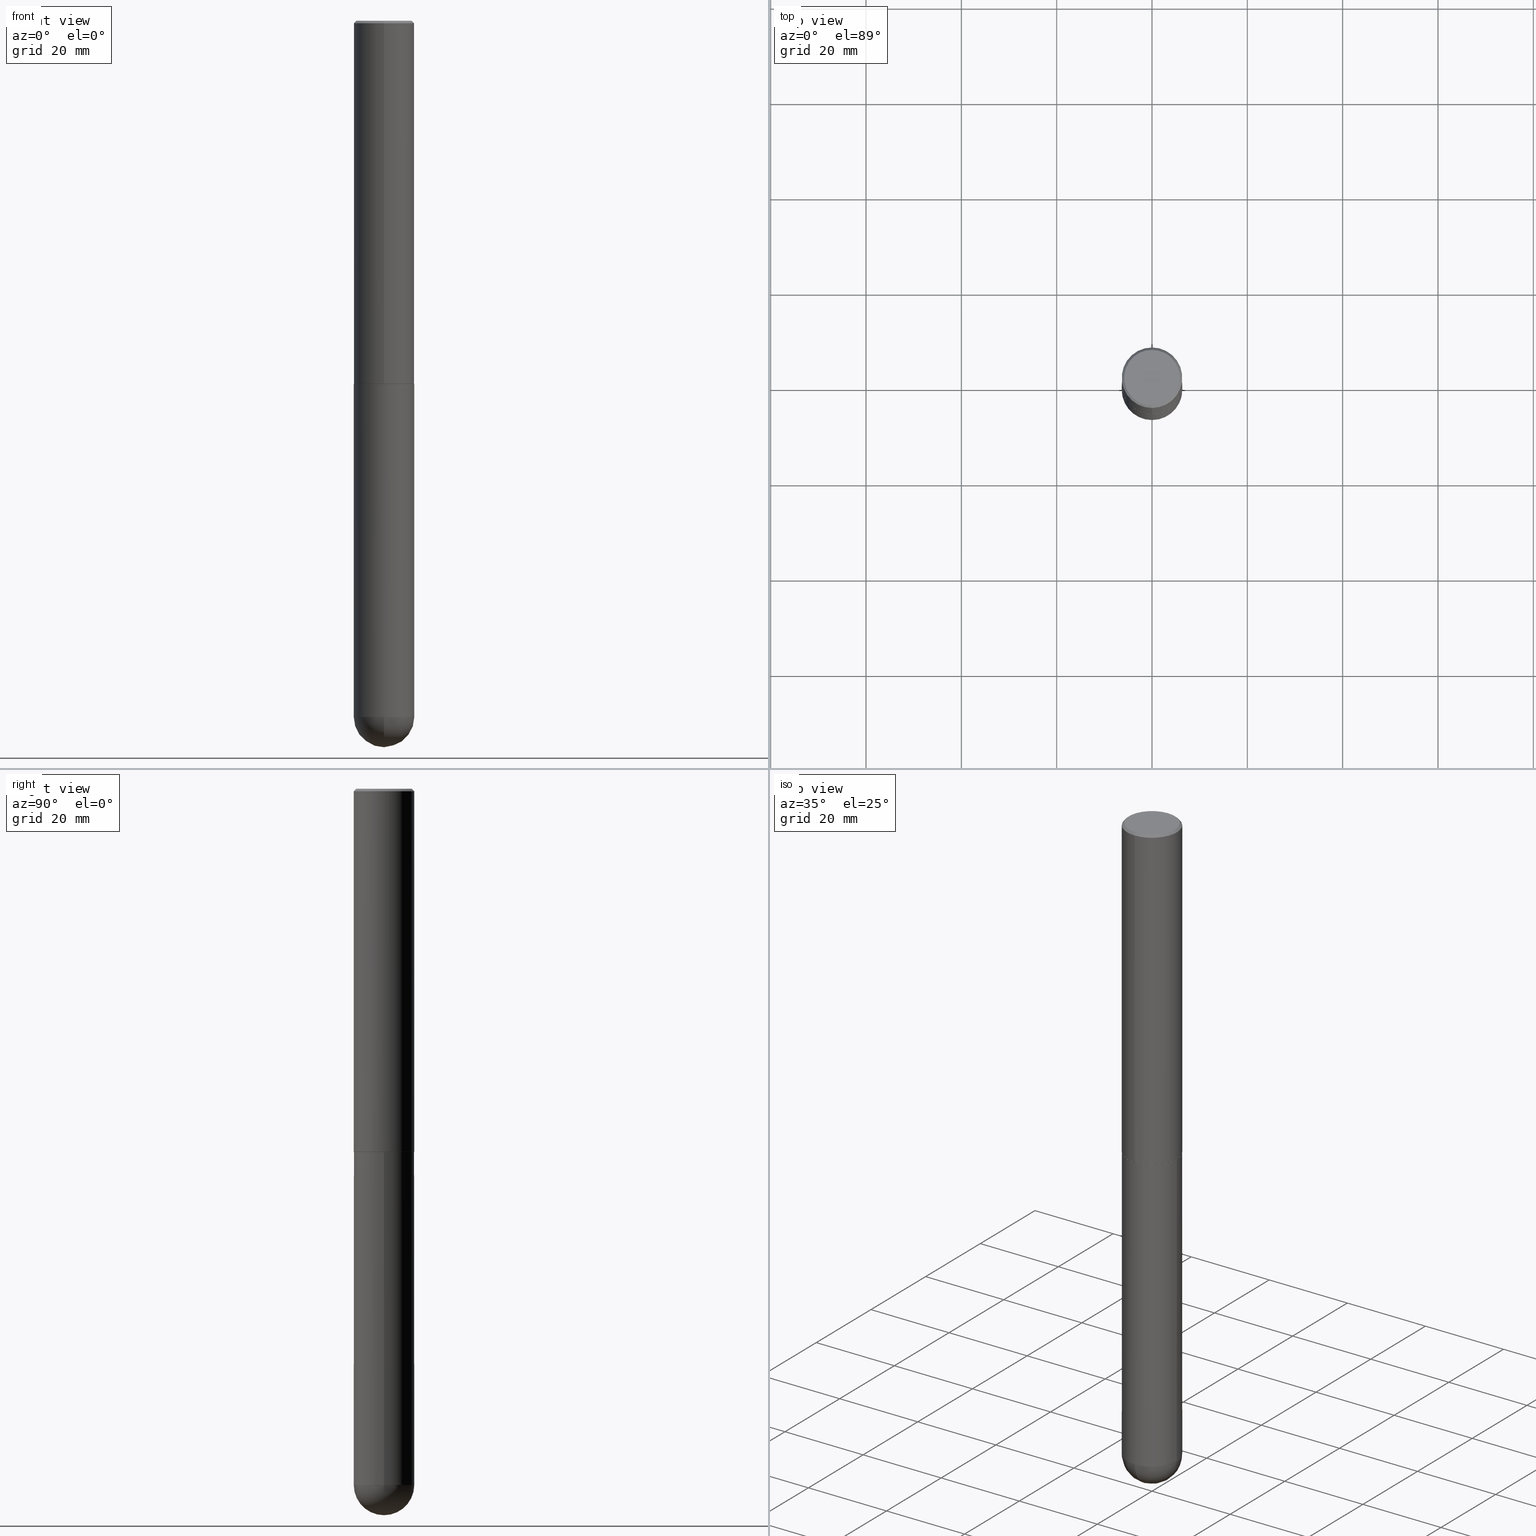
[diagram: canonical four-view strip — front | top / right | iso, engineering-drawing reading convention]
A machine part, canonical four-view strip (front | top / right | iso — engineering-drawing reading convention). The complete STEP part file that produces these views, byte-faithful:
ISO-10303-21;
HEADER;
FILE_DESCRIPTION (( 'STEP AP203' ),
    '1' );
FILE_NAME ('31934.STEP',
    '2024-02-21T17:19:04',
    ( '' ),
    ( '' ),
    'SwSTEP 2.0',
    'SolidWorks 2023',
    '' );
FILE_SCHEMA (( 'CONFIG_CONTROL_DESIGN' ));
ENDSEC;

DATA;
#1 = CLOSED_SHELL ( 'NONE', ( #183, #246, #33, #357, #375, #290, #94, #98 ) ) ;
#2 = CARTESIAN_POINT ( 'NONE',  ( 0.2500000000000000000, -1.702097152686033033E-14, -5.750000000000000888 ) ) ;
#3 = APPLICATION_CONTEXT ( 'configuration controlled 3d designs of mechanical parts and assemblies' ) ;
#4 = ORIENTED_EDGE ( 'NONE', *, *, #144, .T. ) ;
#5 = SPHERICAL_SURFACE ( 'NONE', #215, 0.2500000000000006661 ) ;
#6 = EDGE_CURVE ( 'NONE', #170, #88, #410, .T. ) ;
#7 = VERTEX_POINT ( 'NONE', #409 ) ;
#8 = DIRECTION ( 'NONE',  ( -2.445468806185136597E-29, 3.491481338843145583E-15, 1.000000000000000000 ) ) ;
#9 = ORIENTED_EDGE ( 'NONE', *, *, #214, .T. ) ;
#10 = CIRCLE ( 'NONE', #117, 0.2500000000000006661 ) ;
#11 = AXIS2_PLACEMENT_3D ( 'NONE', #280, #152, #256 ) ;
#12 = ORIENTED_EDGE ( 'NONE', *, *, #332, .T. ) ;
#13 = CARTESIAN_POINT ( 'NONE',  ( 0.000000000000000000, 0.000000000000000000, 0.000000000000000000 ) ) ;
#14 = AXIS2_PLACEMENT_3D ( 'NONE', #208, #181, #77 ) ;
#15 = EDGE_CURVE ( 'NONE', #324, #7, #59, .T. ) ;
#16 = CC_DESIGN_APPROVAL ( #122, ( #231 ) ) ;
#17 = CARTESIAN_POINT ( 'NONE',  ( 0.2500000000000000000, -1.222018468595100303E-14, -3.000000000000000444 ) ) ;
#18 = ORIENTED_EDGE ( 'NONE', *, *, #119, .F. ) ;
#19 = EDGE_CURVE ( 'NONE', #96, #324, #92, .T. ) ;
#20 = CARTESIAN_POINT ( 'NONE',  ( -0.2500000000000000000, -1.349887401803851318E-14, -3.000000000000000444 ) ) ;
#21 = CC_DESIGN_PERSON_AND_ORGANIZATION_ASSIGNMENT ( #155, #411, ( #151 ) ) ;
#22 = PERSON_AND_ORGANIZATION ( #229, #245 ) ;
#23 = CIRCLE ( 'NONE', #319, 0.2300000000000007871 ) ;
#24 = DIRECTION ( 'NONE',  ( -2.445357092195460350E-29, 3.491641319634726865E-15, 1.000000000000000000 ) ) ;
#25 = MECHANICAL_CONTEXT ( 'NONE', #3, 'mechanical' ) ;
#26 = FACE_OUTER_BOUND ( 'NONE', #29, .T. ) ;
#27 = CC_DESIGN_PERSON_AND_ORGANIZATION_ASSIGNMENT ( #34, #132, ( #304 ) ) ;
#28 = EDGE_LOOP ( 'NONE', ( #274, #136, #381, #233 ) ) ;
#29 = EDGE_LOOP ( 'NONE', ( #203, #60 ) ) ;
#30 = DIRECTION ( 'NONE',  ( 2.445357092195460350E-29, -3.491641319634726865E-15, -1.000000000000000000 ) ) ;
#31 = AXIS2_PLACEMENT_3D ( 'NONE', #302, #143, #271 ) ;
#32 = CALENDAR_DATE ( 2024, 21, 2 ) ;
#33 = ADVANCED_FACE ( 'NONE', ( #248 ), #367, .T. ) ;
#34 = PERSON_AND_ORGANIZATION ( #229, #245 ) ;
#35 = DIRECTION ( 'NONE',  ( -2.445357092195460631E-29, 3.491641319634726865E-15, 1.000000000000000000 ) ) ;
#36 = CIRCLE ( 'NONE', #272, 0.2500000000000006661 ) ;
#37 = DIRECTION ( 'NONE',  ( 4.937700262164540154E-15, 0.7071067811865440200, -0.7071067811865511255 ) ) ;
#38 = EDGE_CURVE ( 'NONE', #88, #170, #23, .T. ) ;
#39 = CARTESIAN_POINT ( 'NONE',  ( -0.2500000000000000000, -1.349887401803851318E-14, -5.750000000000000888 ) ) ;
#40 = APPROVAL ( #93, 'UNSPECIFIED' ) ;
#41 = PERSON_AND_ORGANIZATION ( #229, #245 ) ;
#42 = VERTEX_POINT ( 'NONE', #84 ) ;
#43 = CARTESIAN_POINT ( 'NONE',  ( 1.745740669421639647E-15, 0.2499999999999895084, -3.000000000000000888 ) ) ;
#44 = DIRECTION ( 'NONE',  ( -2.445357092195460350E-29, 3.491641319634726865E-15, 1.000000000000000000 ) ) ;
#45 = VERTEX_POINT ( 'NONE', #20 ) ;
#46 = CLOSED_SHELL ( 'NONE', ( #195, #285, #177, #299, #269 ) ) ;
#47 =( LENGTH_UNIT ( ) NAMED_UNIT ( * ) SI_UNIT ( $, .METRE. ) );
#48 = DIRECTION ( 'NONE',  ( -2.445357092195460631E-29, 3.491641319634726865E-15, 1.000000000000000000 ) ) ;
#49 = EDGE_LOOP ( 'NONE', ( #112, #265, #360, #350 ) ) ;
#50 = CARTESIAN_POINT ( 'NONE',  ( 1.373032585765065255E-28, -2.055020006648814124E-14, -5.750000000000000888 ) ) ;
#51 = CC_DESIGN_APPROVAL ( #156, ( #217 ) ) ;
#52 = VECTOR ( 'NONE', #342, 39.37007874015748143 ) ;
#53 = MANIFOLD_SOLID_BREP ( 'Body-Move/Copy2[1]', #46 ) ;
#54 = ORIENTED_EDGE ( 'NONE', *, *, #368, .F. ) ;
#55 =( NAMED_UNIT ( * ) PLANE_ANGLE_UNIT ( ) SI_UNIT ( $, .RADIAN. ) );
#56 = LINE ( 'NONE', #307, #239 ) ;
#57 = CALENDAR_DATE ( 2024, 21, 2 ) ;
#58 = DIRECTION ( 'NONE',  ( 1.000000000000000000, -6.982962677686262766E-15, 0.000000000000000000 ) ) ;
#59 = CIRCLE ( 'NONE', #340, 0.2500000000000003331 ) ;
#60 = ORIENTED_EDGE ( 'NONE', *, *, #140, .F. ) ;
#61 = DIRECTION ( 'NONE',  ( -6.982962677686265922E-15, -1.000000000000000000, 3.491641319634726865E-15 ) ) ;
#62 = MANIFOLD_SOLID_BREP ( 'Body-Move/Copy2[2]', #1 ) ;
#63 = ORIENTED_EDGE ( 'NONE', *, *, #6, .F. ) ;
#64 = APPLICATION_CONTEXT ( 'configuration controlled 3d designs of mechanical parts and assemblies' ) ;
#65 = CALENDAR_DATE ( 2024, 21, 2 ) ;
#66 = AXIS2_PLACEMENT_3D ( 'NONE', #347, #253, #372 ) ;
#67 = DIRECTION ( 'NONE',  ( 6.982962677686265922E-15, 1.000000000000000000, -4.370956789862809317E-15 ) ) ;
#68 = CIRCLE ( 'NONE', #74, 0.2489999999999999991 ) ;
#69 = CC_DESIGN_SECURITY_CLASSIFICATION ( #231, ( #304 ) ) ;
#70 = DIRECTION ( 'NONE',  ( 1.000000000000000000, -6.982962677686262766E-15, 0.000000000000000000 ) ) ;
#71 = LINE ( 'NONE', #223, #159 ) ;
#72 = EDGE_LOOP ( 'NONE', ( #369, #389 ) ) ;
#73 = DIRECTION ( 'NONE',  ( 2.445357092195460631E-29, -3.491641319634726865E-15, -1.000000000000000000 ) ) ;
#74 = AXIS2_PLACEMENT_3D ( 'NONE', #394, #142, #111 ) ;
#75 = FACE_OUTER_BOUND ( 'NONE', #79, .T. ) ;
#76 = CARTESIAN_POINT ( 'NONE',  ( 1.776356839400251254E-15, 0.2500000000000001665, -8.729103299086822093E-16 ) ) ;
#77 = DIRECTION ( 'NONE',  ( -6.982962677686265922E-15, -1.000000000000000000, 3.483106191921935554E-15 ) ) ;
#78 = CIRCLE ( 'NONE', #364, 0.2500000000000000000 ) ;
#79 = EDGE_LOOP ( 'NONE', ( #279, #386, #118, #296, #4 ) ) ;
#80 = CARTESIAN_POINT ( 'NONE',  ( 1.373032585765065255E-28, -2.055020006648814124E-14, -5.750000000000000888 ) ) ;
#81 = PRODUCT_DEFINITION_SHAPE ( 'NONE', 'NONE',  #217 ) ;
#82 = CARTESIAN_POINT ( 'NONE',  ( -0.2500000000000000000, 1.776356839400250465E-15, -1.229733772563726445E-29 ) ) ;
#83 = APPROVAL_ROLE ( '' ) ;
#84 = CARTESIAN_POINT ( 'NONE',  ( 1.435238263781167989E-28, -2.140776231620958900E-14, -6.000000000000001776 ) ) ;
#85 = AXIS2_PLACEMENT_3D ( 'NONE', #130, #188, #278 ) ;
#86 = LINE ( 'NONE', #82, #52 ) ;
#87 = APPLICATION_PROTOCOL_DEFINITION ( 'international standard', 'config_control_design', 1994, #64 ) ;
#88 = VERTEX_POINT ( 'NONE', #89 ) ;
#89 = CARTESIAN_POINT ( 'NONE',  ( -1.646519519465169926E-15, -0.2300000000000007871, 1.770800091957787978E-17 ) ) ;
#90 = ORIENTED_EDGE ( 'NONE', *, *, #308, .F. ) ;
#91 = EDGE_CURVE ( 'NONE', #268, #306, #258, .T. ) ;
#92 = LINE ( 'NONE', #373, #186 ) ;
#93 = APPROVAL_STATUS ( 'not_yet_approved' ) ;
#94 = ADVANCED_FACE ( 'NONE', ( #26 ), #157, .F. ) ;
#95 = CIRCLE ( 'NONE', #251, 0.2500000000000000000 ) ;
#96 = VERTEX_POINT ( 'NONE', #150 ) ;
#97 = CARTESIAN_POINT ( 'NONE',  ( 0.000000000000000000, 0.000000000000000000, 0.000000000000000000 ) ) ;
#98 = ADVANCED_FACE ( 'NONE', ( #407 ), #123, .F. ) ;
#99 = DATE_AND_TIME ( #57, #198 ) ;
#100 = CARTESIAN_POINT ( 'NONE',  ( -1.715124499442882299E-15, -0.2500000000000000555, -0.01999999999999918510 ) ) ;
#101 = ORIENTED_EDGE ( 'NONE', *, *, #19, .T. ) ;
#102 = DIRECTION ( 'NONE',  ( 6.982962677686266711E-15, 1.000000000000000000, 0.000000000000000000 ) ) ;
#103 = CIRCLE ( 'NONE', #165, 0.2489999999999999991 ) ;
#104 = APPROVAL_DATE_TIME ( #99, #40 ) ;
#105 = ORIENTED_EDGE ( 'NONE', *, *, #303, .T. ) ;
#106 = DIRECTION ( 'NONE',  ( -2.445357092195460631E-29, 3.491641319634726865E-15, 1.000000000000000000 ) ) ;
#107 = DESIGN_CONTEXT ( 'detailed design', #64, 'design' ) ;
#108 = EDGE_LOOP ( 'NONE', ( #18, #63, #105, #9 ) ) ;
#109 = DIRECTION ( 'NONE',  ( -6.982962677686265922E-15, -1.000000000000000000, 3.491641319634726471E-15 ) ) ;
#110 = EDGE_CURVE ( 'NONE', #306, #207, #249, .T. ) ;
#111 = DIRECTION ( 'NONE',  ( -6.982962677686265133E-15, -1.000000000000000000, 4.388510833195603583E-15 ) ) ;
#112 = ORIENTED_EDGE ( 'NONE', *, *, #38, .F. ) ;
#113 = DIRECTION ( 'NONE',  ( -1.000000000000000000, 6.982962677686265922E-15, -4.883557194083112340E-29 ) ) ;
#114 = DIRECTION ( 'NONE',  ( -2.445468806185136597E-29, 3.491481338843145583E-15, 1.000000000000000000 ) ) ;
#115 = EDGE_CURVE ( 'NONE', #351, #45, #86, .T. ) ;
#116 = CARTESIAN_POINT ( 'NONE',  ( 1.406144563556453767E-28, -2.007601769834809252E-14, -5.750000000000000888 ) ) ;
#117 = AXIS2_PLACEMENT_3D ( 'NONE', #80, #210, #187 ) ;
#118 = ORIENTED_EDGE ( 'NONE', *, *, #344, .F. ) ;
#119 = EDGE_CURVE ( 'NONE', #88, #312, #378, .T. ) ;
#120 = DIRECTION ( 'NONE',  ( -6.982962677686265922E-15, -1.000000000000000000, 4.370956789862815627E-15 ) ) ;
#121 = PERSON_AND_ORGANIZATION_ROLE ( 'creator' ) ;
#122 = APPROVAL ( #291, 'UNSPECIFIED' ) ;
#123 = PLANE ( 'NONE',  #145 ) ;
#124 = ORIENTED_EDGE ( 'NONE', *, *, #308, .T. ) ;
#125 = LOCAL_TIME ( 12, 19, 4.000000000000000000, #286 ) ;
#126 = CIRCLE ( 'NONE', #380, 0.2500000000000000000 ) ;
#127 = APPROVAL_PERSON_ORGANIZATION ( #379, #40, #212 ) ;
#128 = DIRECTION ( 'NONE',  ( 5.024295867789434219E-15, 0.7071067811867430830, 0.7071067811863519514 ) ) ;
#129 = APPROVAL_STATUS ( 'not_yet_approved' ) ;
#130 = CARTESIAN_POINT ( 'NONE',  ( 1.920508883168157338E-44, -2.742228606446605218E-30, -7.853695025964119872E-16 ) ) ;
#131 = AXIS2_PLACEMENT_3D ( 'NONE', #300, #35, #393 ) ;
#132 = PERSON_AND_ORGANIZATION_ROLE ( 'design_supplier' ) ;
#133 = DIRECTION ( 'NONE',  ( -1.000000000000000000, 6.982962677686265922E-15, -4.883557194083112340E-29 ) ) ;
#134 = EDGE_CURVE ( 'NONE', #7, #312, #56, .T. ) ;
#135 = ORIENTED_EDGE ( 'NONE', *, *, #144, .F. ) ;
#136 = ORIENTED_EDGE ( 'NONE', *, *, #140, .T. ) ;
#137 = DIRECTION ( 'NONE',  ( -6.982962677686265922E-15, -1.000000000000000000, 3.483106191921935554E-15 ) ) ;
#138 = AXIS2_PLACEMENT_3D ( 'NONE', #97, #106, #109 ) ;
#139 = AXIS2_PLACEMENT_3D ( 'NONE', #365, #175, #362 ) ;
#140 = EDGE_CURVE ( 'NONE', #96, #219, #103, .T. ) ;
#141 = CARTESIAN_POINT ( 'NONE',  ( 7.336406418555409790E-29, -1.047444401652943635E-14, -3.000000000000000444 ) ) ;
#142 = DIRECTION ( 'NONE',  ( -2.445357092195460631E-29, 3.491641319634726865E-15, 1.000000000000000000 ) ) ;
#143 = DIRECTION ( 'NONE',  ( -2.445357092195460631E-29, 3.491641319634726865E-15, 1.000000000000000000 ) ) ;
#144 = EDGE_CURVE ( 'NONE', #306, #173, #348, .T. ) ;
#145 = AXIS2_PLACEMENT_3D ( 'NONE', #191, #30, #275 ) ;
#146 = CIRCLE ( 'NONE', #228, 0.2500000000000000000 ) ;
#147 = CARTESIAN_POINT ( 'NONE',  ( 0.000000000000000000, 0.000000000000000000, 0.000000000000000000 ) ) ;
#148 = EDGE_LOOP ( 'NONE', ( #355, #343 ) ) ;
#149 = DIMENSIONAL_EXPONENTS ( 1.000000000000000000, 0.000000000000000000, 0.000000000000000000, 0.000000000000000000, 0.000000000000000000, 0.000000000000000000, 0.000000000000000000 ) ;
#150 = CARTESIAN_POINT ( 'NONE',  ( 1.772804125721524114E-15, 0.2489999999999895075, -3.000000000000001332 ) ) ;
#151 = PRODUCT ( '31934', '31934', '', ( #25 ) ) ;
#152 = DIRECTION ( 'NONE',  ( 0.000000000000000000, 0.000000000000000000, 1.000000000000000000 ) ) ;
#153 = CIRCLE ( 'NONE', #180, 0.2500000000000000000 ) ;
#154 = CARTESIAN_POINT ( 'NONE',  ( 7.336071276586383013E-29, -1.047492395890418099E-14, -3.000000000000000444 ) ) ;
#155 = PERSON_AND_ORGANIZATION ( #229, #245 ) ;
#156 = APPROVAL ( #129, 'UNSPECIFIED' ) ;
#157 = PLANE ( 'NONE',  #230 ) ;
#158 = ORIENTED_EDGE ( 'NONE', *, *, #221, .T. ) ;
#159 = VECTOR ( 'NONE', #297, 39.37007874015748143 ) ;
#160 = VECTOR ( 'NONE', #211, 39.37007874015748854 ) ;
#161 = APPROVAL_PERSON_ORGANIZATION ( #41, #122, #316 ) ;
#162 = DATE_AND_TIME ( #32, #125 ) ;
#163 = FACE_OUTER_BOUND ( 'NONE', #72, .T. ) ;
#164 = CONICAL_SURFACE ( 'NONE', #139, 0.2489999999999999991, 0.7853981633977213939 ) ;
#165 = AXIS2_PLACEMENT_3D ( 'NONE', #154, #48, #267 ) ;
#166 = APPROVAL_DATE_TIME ( #232, #122 ) ;
#167 = CARTESIAN_POINT ( 'NONE',  ( 1.373032585765065255E-28, -2.055020006648814124E-14, -5.750000000000000888 ) ) ;
#168 = COORDINATED_UNIVERSAL_TIME_OFFSET ( 5, 0, .BEHIND. ) ;
#169 = DIRECTION ( 'NONE',  ( 6.982962677686265922E-15, 1.000000000000000000, -3.483106191921935554E-15 ) ) ;
#170 = VERTEX_POINT ( 'NONE', #333 ) ;
#171 = FACE_OUTER_BOUND ( 'NONE', #193, .T. ) ;
#172 = EDGE_CURVE ( 'NONE', #219, #96, #68, .T. ) ;
#173 = VERTEX_POINT ( 'NONE', #358 ) ;
#174 = CARTESIAN_POINT ( 'NONE',  ( 1.406144563556453767E-28, -2.007601769834809252E-14, -5.750000000000000888 ) ) ;
#175 = DIRECTION ( 'NONE',  ( -2.445357092195460631E-29, 3.491641319634726865E-15, 1.000000000000000000 ) ) ;
#176 = ORIENTED_EDGE ( 'NONE', *, *, #110, .T. ) ;
#177 = ADVANCED_FACE ( 'NONE', ( #237 ), #270, .T. ) ;
#178 = CYLINDRICAL_SURFACE ( 'NONE', #31, 0.2500000000000001665 ) ;
#179 = DIRECTION ( 'NONE',  ( 1.000000000000000000, -6.982962677686266711E-15, 4.876176775795935793E-29 ) ) ;
#180 = AXIS2_PLACEMENT_3D ( 'NONE', #141, #8, #317 ) ;
#181 = DIRECTION ( 'NONE',  ( -2.445357092195460631E-29, 3.491641319634726865E-15, 1.000000000000000000 ) ) ;
#182 = DIRECTION ( 'NONE',  ( -2.445357092195460350E-29, 3.491641319634726865E-15, 1.000000000000000000 ) ) ;
#183 = ADVANCED_FACE ( 'NONE', ( #273 ), #164, .T. ) ;
#184 = FACE_OUTER_BOUND ( 'NONE', #301, .T. ) ;
#185 = CARTESIAN_POINT ( 'NONE',  ( -1.715124499442882299E-15, -0.2500000000000000555, -0.01999999999999918510 ) ) ;
#186 = VECTOR ( 'NONE', #128, 39.37007874015748143 ) ;
#187 = DIRECTION ( 'NONE',  ( -7.105427357601001859E-15, -1.000000000000000000, 0.000000000000000000 ) ) ;
#188 = DIRECTION ( 'NONE',  ( -2.445357092195460631E-29, 3.491641319634726865E-15, 1.000000000000000000 ) ) ;
#189 = EDGE_CURVE ( 'NONE', #7, #324, #194, .T. ) ;
#190 = DIRECTION ( 'NONE',  ( -2.445468806185136597E-29, 3.491481338843145583E-15, 1.000000000000000000 ) ) ;
#191 = CARTESIAN_POINT ( 'NONE',  ( 1.606081415867846589E-15, 0.2300000000000007871, -1.195762254814195959E-15 ) ) ;
#192 = APPROVAL_DATE_TIME ( #406, #156 ) ;
#193 = EDGE_LOOP ( 'NONE', ( #243, #158, #292, #226 ) ) ;
#194 = CIRCLE ( 'NONE', #197, 0.2500000000000003331 ) ;
#195 = ADVANCED_FACE ( 'NONE', ( #75 ), #326, .T. ) ;
#196 = DIRECTION ( 'NONE',  ( 2.438088387897960049E-29, -3.491481338843145188E-15, -1.000000000000000000 ) ) ;
#197 = AXIS2_PLACEMENT_3D ( 'NONE', #202, #366, #205 ) ;
#198 = LOCAL_TIME ( 12, 19, 4.000000000000000000, #338 ) ;
#199 = ORIENTED_EDGE ( 'NONE', *, *, #91, .F. ) ;
#200 = FACE_OUTER_BOUND ( 'NONE', #28, .T. ) ;
#201 = ORIENTED_EDGE ( 'NONE', *, *, #15, .T. ) ;
#202 = CARTESIAN_POINT ( 'NONE',  ( 7.333625919494187361E-29, -1.047143231758454677E-14, -2.999000000000000554 ) ) ;
#203 = ORIENTED_EDGE ( 'NONE', *, *, #172, .F. ) ;
#204 = CARTESIAN_POINT ( 'NONE',  ( 4.890714184390934188E-31, -6.983282639269473353E-17, -0.02000000000000005593 ) ) ;
#205 = DIRECTION ( 'NONE',  ( -6.982962677686265922E-15, -1.000000000000000000, 4.370956789862815627E-15 ) ) ;
#206 = CONICAL_SURFACE ( 'NONE', #354, 0.2500000000000000000, 0.7853981633974467247 ) ;
#207 = VERTEX_POINT ( 'NONE', #17 ) ;
#208 = CARTESIAN_POINT ( 'NONE',  ( 4.890714184390934188E-31, -6.983282639269473353E-17, -0.02000000000000005593 ) ) ;
#209 = AXIS2_PLACEMENT_3D ( 'NONE', #147, #329, #179 ) ;
#210 = DIRECTION ( 'NONE',  ( -1.000000000000000000, 7.105427357601001070E-15, -4.926315508542082329E-29 ) ) ;
#211 = DIRECTION ( 'NONE',  ( -4.851104656540955597E-15, -0.7071067811865487940, -0.7071067811865461294 ) ) ;
#212 = APPROVAL_ROLE ( '' ) ;
#213 = ORIENTED_EDGE ( 'NONE', *, *, #264, .F. ) ;
#214 = EDGE_CURVE ( 'NONE', #216, #312, #276, .T. ) ;
#215 = AXIS2_PLACEMENT_3D ( 'NONE', #322, #133, #67 ) ;
#216 = VERTEX_POINT ( 'NONE', #305 ) ;
#217 = PRODUCT_DEFINITION ( 'UNKNOWN', '', #304, #107 ) ;
#218 = CARTESIAN_POINT ( 'NONE',  ( 1.406144563556453767E-28, -2.007601769834809252E-14, -5.750000000000000888 ) ) ;
#219 = VERTEX_POINT ( 'NONE', #401 ) ;
#220 = VECTOR ( 'NONE', #37, 39.37007874015748143 ) ;
#221 = EDGE_CURVE ( 'NONE', #324, #216, #331, .T. ) ;
#222 = PERSON_AND_ORGANIZATION_ROLE ( 'classification_officer' ) ;
#223 = CARTESIAN_POINT ( 'NONE',  ( -1.738757706743806905E-15, -0.2490000000000104907, -2.999999999999999112 ) ) ;
#224 = CALENDAR_DATE ( 2024, 21, 2 ) ;
#225 = CARTESIAN_POINT ( 'NONE',  ( 1.776356839400289119E-15, 0.2499999999999898415, -2.999000000000001442 ) ) ;
#226 = ORIENTED_EDGE ( 'NONE', *, *, #134, .F. ) ;
#227 = DIRECTION ( 'NONE',  ( -2.445468806185136597E-29, 3.491481338843145583E-15, 1.000000000000000000 ) ) ;
#228 = AXIS2_PLACEMENT_3D ( 'NONE', #204, #328, #137 ) ;
#229 = PERSON ( 'UNSPECIFIED', 'UNSPECIFIED', 'UNSPECIFIED', ('UNSPECIFIED'), ('UNSPECIFIED'), ('UNSPECIFIED') ) ;
#230 = AXIS2_PLACEMENT_3D ( 'NONE', #313, #182, #309 ) ;
#231 = SECURITY_CLASSIFICATION ( '', '', #287 ) ;
#232 = DATE_AND_TIME ( #259, #398 ) ;
#233 = ORIENTED_EDGE ( 'NONE', *, *, #15, .F. ) ;
#234 = COORDINATED_UNIVERSAL_TIME_OFFSET ( 5, 0, .BEHIND. ) ;
#235 = ORIENTED_EDGE ( 'NONE', *, *, #115, .F. ) ;
#236 = LENGTH_MEASURE_WITH_UNIT ( LENGTH_MEASURE( 0.02539999999999999897 ), #47 );
#237 = FACE_OUTER_BOUND ( 'NONE', #392, .T. ) ;
#238 = EDGE_LOOP ( 'NONE', ( #262, #201, #337, #254 ) ) ;
#239 = VECTOR ( 'NONE', #24, 39.37007874015748143 ) ;
#240 = DIRECTION ( 'NONE',  ( 1.000000000000000000, -6.982962677686262766E-15, 0.000000000000000000 ) ) ;
#241 = DIRECTION ( 'NONE',  ( -2.445468806185136597E-29, 3.491481338843145583E-15, 1.000000000000000000 ) ) ;
#242 = CARTESIAN_POINT ( 'NONE',  ( -1.776356839400113597E-15, -0.2500000000000206501, -5.750000000000000000 ) ) ;
#243 = ORIENTED_EDGE ( 'NONE', *, *, #189, .T. ) ;
#244 = AXIS2_PLACEMENT_3D ( 'NONE', #43, #196, #288 ) ;
#245 = ORGANIZATION ( 'UNSPECIFIED', 'UNSPECIFIED', '' ) ;
#246 = ADVANCED_FACE ( 'NONE', ( #171 ), #178, .T. ) ;
#247 = EDGE_LOOP ( 'NONE', ( #90, #412, #363, #281 ) ) ;
#248 = FACE_OUTER_BOUND ( 'NONE', #49, .T. ) ;
#249 = LINE ( 'NONE', #255, #374 ) ;
#250 = PRODUCT_RELATED_PRODUCT_CATEGORY ( 'detail', '', ( #151 ) ) ;
#251 = AXIS2_PLACEMENT_3D ( 'NONE', #174, #227, #356 ) ;
#252 = CC_DESIGN_APPROVAL ( #40, ( #304 ) ) ;
#253 = DIRECTION ( 'NONE',  ( 2.445357092195460631E-29, -3.491641319634726865E-15, -1.000000000000000000 ) ) ;
#254 = ORIENTED_EDGE ( 'NONE', *, *, #214, .F. ) ;
#255 = CARTESIAN_POINT ( 'NONE',  ( 0.2500000000000000000, -1.745740669421566678E-15, 1.219044193948983948E-29 ) ) ;
#256 = DIRECTION ( 'NONE',  ( 1.000000000000000000, 0.000000000000000000, 0.000000000000000000 ) ) ;
#257 = CARTESIAN_POINT ( 'NONE',  ( 7.336406418555409790E-29, -1.047444401652943635E-14, -3.000000000000000444 ) ) ;
#258 = CIRCLE ( 'NONE', #283, 0.2500000000000000000 ) ;
#259 = CALENDAR_DATE ( 2024, 21, 2 ) ;
#260 = DIRECTION ( 'NONE',  ( 1.000000000000000000, -6.982962677686266711E-15, 4.876176775795935793E-29 ) ) ;
#261 = EDGE_CURVE ( 'NONE', #173, #351, #78, .T. ) ;
#262 = ORIENTED_EDGE ( 'NONE', *, *, #221, .F. ) ;
#263 = LINE ( 'NONE', #293, #220 ) ;
#264 = EDGE_CURVE ( 'NONE', #42, #268, #10, .T. ) ;
#265 = ORIENTED_EDGE ( 'NONE', *, *, #119, .T. ) ;
#266 = FACE_OUTER_BOUND ( 'NONE', #238, .T. ) ;
#267 = DIRECTION ( 'NONE',  ( -6.982962677686265133E-15, -1.000000000000000000, 4.388510833195603583E-15 ) ) ;
#268 = VERTEX_POINT ( 'NONE', #242 ) ;
#269 = ADVANCED_FACE ( 'NONE', ( #184 ), #277, .T. ) ;
#270 = SPHERICAL_SURFACE ( 'NONE', #390, 0.2500000000000006661 ) ;
#271 = DIRECTION ( 'NONE',  ( -6.982962677686265922E-15, -1.000000000000000000, 3.491641319634726471E-15 ) ) ;
#272 = AXIS2_PLACEMENT_3D ( 'NONE', #167, #384, #102 ) ;
#273 = FACE_OUTER_BOUND ( 'NONE', #395, .T. ) ;
#274 = ORIENTED_EDGE ( 'NONE', *, *, #19, .F. ) ;
#275 = DIRECTION ( 'NONE',  ( 6.982962677686265922E-15, 1.000000000000000000, -3.491641319634726865E-15 ) ) ;
#276 = CIRCLE ( 'NONE', #14, 0.2500000000000000000 ) ;
#277 = CYLINDRICAL_SURFACE ( 'NONE', #298, 0.2500000000000000000 ) ;
#278 = DIRECTION ( 'NONE',  ( -6.982962677686265922E-15, -1.000000000000000000, 3.491641319634726865E-15 ) ) ;
#279 = ORIENTED_EDGE ( 'NONE', *, *, #261, .T. ) ;
#280 = CARTESIAN_POINT ( 'NONE',  ( 0.000000000000000000, 0.000000000000000000, 0.000000000000000000 ) ) ;
#281 = ORIENTED_EDGE ( 'NONE', *, *, #261, .F. ) ;
#282 = APPROVAL_PERSON_ORGANIZATION ( #22, #156, #83 ) ;
#283 = AXIS2_PLACEMENT_3D ( 'NONE', #218, #190, #311 ) ;
#284 = DIRECTION ( 'NONE',  ( -2.445357092195460631E-29, 3.491641319634726865E-15, 1.000000000000000000 ) ) ;
#285 = ADVANCED_FACE ( 'NONE', ( #387 ), #5, .T. ) ;
#286 = COORDINATED_UNIVERSAL_TIME_OFFSET ( 5, 0, .BEHIND. ) ;
#287 = SECURITY_CLASSIFICATION_LEVEL ( 'unclassified' ) ;
#288 = DIRECTION ( 'NONE',  ( -1.000000000000000000, 6.982962677686265922E-15, -4.876176775795935793E-29 ) ) ;
#289 = AXIS2_PLACEMENT_3D ( 'NONE', #116, #241, #240 ) ;
#290 = ADVANCED_FACE ( 'NONE', ( #200 ), #402, .T. ) ;
#291 = APPROVAL_STATUS ( 'not_yet_approved' ) ;
#292 = ORIENTED_EDGE ( 'NONE', *, *, #371, .F. ) ;
#293 = CARTESIAN_POINT ( 'NONE',  ( 1.745740669421566875E-15, 0.2499999999999999167, -0.02000000000000092676 ) ) ;
#294 = ORIENTED_EDGE ( 'NONE', *, *, #385, .F. ) ;
#295 = PLANE ( 'NONE',  #244 ) ;
#296 = ORIENTED_EDGE ( 'NONE', *, *, #110, .F. ) ;
#297 = DIRECTION ( 'NONE',  ( -4.937700262165896205E-15, -0.7071067811867381980, 0.7071067811863568364 ) ) ;
#298 = AXIS2_PLACEMENT_3D ( 'NONE', #13, #320, #260 ) ;
#299 = ADVANCED_FACE ( 'NONE', ( #163 ), #295, .F. ) ;
#300 = CARTESIAN_POINT ( 'NONE',  ( 7.336071276586383013E-29, -1.047492395890418099E-14, -3.000000000000000444 ) ) ;
#301 = EDGE_LOOP ( 'NONE', ( #235, #12, #336, #176, #54 ) ) ;
#302 = CARTESIAN_POINT ( 'NONE',  ( 0.000000000000000000, 0.000000000000000000, 0.000000000000000000 ) ) ;
#303 = EDGE_CURVE ( 'NONE', #170, #216, #263, .T. ) ;
#304 = PRODUCT_DEFINITION_FORMATION_WITH_SPECIFIED_SOURCE ( 'ANY', '', #151, .NOT_KNOWN. ) ;
#305 = CARTESIAN_POINT ( 'NONE',  ( 1.745740669421566875E-15, 0.2499999999999999167, -0.02000000000000092676 ) ) ;
#306 = VERTEX_POINT ( 'NONE', #2 ) ;
#307 = CARTESIAN_POINT ( 'NONE',  ( -1.745740669421567664E-15, -0.2500000000000001665, 8.729103299086822093E-16 ) ) ;
#308 = EDGE_CURVE ( 'NONE', #42, #173, #36, .T. ) ;
#309 = DIRECTION ( 'NONE',  ( -6.982962677686265922E-15, -1.000000000000000000, 3.491641319634726865E-15 ) ) ;
#310 =( NAMED_UNIT ( * ) SI_UNIT ( $, .STERADIAN. ) SOLID_ANGLE_UNIT ( ) );
#311 = DIRECTION ( 'NONE',  ( 1.000000000000000000, -6.982962677686262766E-15, 0.000000000000000000 ) ) ;
#312 = VERTEX_POINT ( 'NONE', #100 ) ;
#313 = CARTESIAN_POINT ( 'NONE',  ( 7.336071276586380771E-29, -1.047492395890417941E-14, -2.999999999999999556 ) ) ;
#314 = PERSON_AND_ORGANIZATION ( #229, #245 ) ;
#315 = LOCAL_TIME ( 12, 19, 4.000000000000000000, #168 ) ;
#316 = APPROVAL_ROLE ( '' ) ;
#317 = DIRECTION ( 'NONE',  ( 1.000000000000000000, -6.982962677686262766E-15, 0.000000000000000000 ) ) ;
#318 = DATE_AND_TIME ( #224, #315 ) ;
#319 = AXIS2_PLACEMENT_3D ( 'NONE', #345, #376, #61 ) ;
#320 = DIRECTION ( 'NONE',  ( -2.445468806185136597E-29, 3.491481338843145583E-15, 1.000000000000000000 ) ) ;
#321 = SHAPE_DEFINITION_REPRESENTATION ( #81, #400 ) ;
#322 = CARTESIAN_POINT ( 'NONE',  ( 1.373032585765065255E-28, -2.055020006648814124E-14, -5.750000000000000888 ) ) ;
#323 = PERSON_AND_ORGANIZATION ( #229, #245 ) ;
#324 = VERTEX_POINT ( 'NONE', #225 ) ;
#325 = DIRECTION ( 'NONE',  ( -2.445468806185136597E-29, 3.491481338843145583E-15, 1.000000000000000000 ) ) ;
#326 = CYLINDRICAL_SURFACE ( 'NONE', #209, 0.2500000000000000000 ) ;
#327 = ORIENTED_EDGE ( 'NONE', *, *, #189, .F. ) ;
#328 = DIRECTION ( 'NONE',  ( -2.445357092195460631E-29, 3.491641319634726865E-15, 1.000000000000000000 ) ) ;
#329 = DIRECTION ( 'NONE',  ( -2.445468806185136597E-29, 3.491481338843145583E-15, 1.000000000000000000 ) ) ;
#330 = UNCERTAINTY_MEASURE_WITH_UNIT (LENGTH_MEASURE( 1.000000000000000082E-05 ), #361, 'distance_accuracy_value', 'NONE');
#331 = LINE ( 'NONE', #76, #397 ) ;
#332 = EDGE_CURVE ( 'NONE', #351, #268, #95, .T. ) ;
#333 = CARTESIAN_POINT ( 'NONE',  ( 1.675911042644706732E-15, 0.2300000000000007871, -1.588447006112402101E-15 ) ) ;
#334 = CC_DESIGN_PERSON_AND_ORGANIZATION_ASSIGNMENT ( #314, #121, ( #217 ) ) ;
#335 = LOCAL_TIME ( 12, 19, 4.000000000000000000, #346 ) ;
#336 = ORIENTED_EDGE ( 'NONE', *, *, #91, .T. ) ;
#337 = ORIENTED_EDGE ( 'NONE', *, *, #134, .T. ) ;
#338 = COORDINATED_UNIVERSAL_TIME_OFFSET ( 5, 0, .BEHIND. ) ;
#339 = ORIENTED_EDGE ( 'NONE', *, *, #172, .T. ) ;
#340 = AXIS2_PLACEMENT_3D ( 'NONE', #405, #284, #120 ) ;
#341 = CC_DESIGN_PERSON_AND_ORGANIZATION_ASSIGNMENT ( #383, #222, ( #231 ) ) ;
#342 = DIRECTION ( 'NONE',  ( -2.445468806185136877E-29, 3.491481338843145188E-15, 1.000000000000000000 ) ) ;
#343 = ORIENTED_EDGE ( 'NONE', *, *, #38, .T. ) ;
#344 = EDGE_CURVE ( 'NONE', #207, #45, #126, .T. ) ;
#345 = CARTESIAN_POINT ( 'NONE',  ( 1.920508883168157338E-44, -2.742228606446605218E-30, -7.853695025964119872E-16 ) ) ;
#346 = COORDINATED_UNIVERSAL_TIME_OFFSET ( 5, 0, .BEHIND. ) ;
#347 = CARTESIAN_POINT ( 'NONE',  ( 4.890714184390934188E-31, -6.983282639269473353E-17, -0.02000000000000005593 ) ) ;
#348 = CIRCLE ( 'NONE', #289, 0.2500000000000000000 ) ;
#349 = DATE_TIME_ROLE ( 'classification_date' ) ;
#350 = ORIENTED_EDGE ( 'NONE', *, *, #303, .F. ) ;
#351 = VERTEX_POINT ( 'NONE', #39 ) ;
#352 = FACE_OUTER_BOUND ( 'NONE', #108, .T. ) ;
#353 = CC_DESIGN_PERSON_AND_ORGANIZATION_ASSIGNMENT ( #323, #359, ( #304 ) ) ;
#354 = AXIS2_PLACEMENT_3D ( 'NONE', #382, #73, #169 ) ;
#355 = ORIENTED_EDGE ( 'NONE', *, *, #6, .T. ) ;
#356 = DIRECTION ( 'NONE',  ( 1.000000000000000000, -6.982962677686262766E-15, 0.000000000000000000 ) ) ;
#357 = ADVANCED_FACE ( 'NONE', ( #352 ), #206, .T. ) ;
#358 = CARTESIAN_POINT ( 'NONE',  ( 1.745740669421707884E-15, 0.2499999999999800160, -5.750000000000001776 ) ) ;
#359 = PERSON_AND_ORGANIZATION_ROLE ( 'creator' ) ;
#360 = ORIENTED_EDGE ( 'NONE', *, *, #371, .T. ) ;
#361 =( CONVERSION_BASED_UNIT ( 'INCH', #236 ) LENGTH_UNIT ( ) NAMED_UNIT ( #149 ) );
#362 = DIRECTION ( 'NONE',  ( -6.982962677686265133E-15, -1.000000000000000000, 4.388510833195603583E-15 ) ) ;
#363 = ORIENTED_EDGE ( 'NONE', *, *, #332, .F. ) ;
#364 = AXIS2_PLACEMENT_3D ( 'NONE', #399, #114, #58 ) ;
#365 = CARTESIAN_POINT ( 'NONE',  ( 7.336071276586383013E-29, -1.047492395890418099E-14, -3.000000000000000444 ) ) ;
#366 = DIRECTION ( 'NONE',  ( -2.445357092195460631E-29, 3.491641319634726865E-15, 1.000000000000000000 ) ) ;
#367 = CONICAL_SURFACE ( 'NONE', #66, 0.2500000000000000000, 0.7853981633974467247 ) ;
#368 = EDGE_CURVE ( 'NONE', #45, #207, #153, .T. ) ;
#369 = ORIENTED_EDGE ( 'NONE', *, *, #344, .T. ) ;
#370 = DATE_TIME_ROLE ( 'creation_date' ) ;
#371 = EDGE_CURVE ( 'NONE', #312, #216, #146, .T. ) ;
#372 = DIRECTION ( 'NONE',  ( 6.982962677686265922E-15, 1.000000000000000000, -3.483106191921935554E-15 ) ) ;
#373 = CARTESIAN_POINT ( 'NONE',  ( 1.769251412042722426E-15, 0.2489999999999895075, -3.000000000000001332 ) ) ;
#374 = VECTOR ( 'NONE', #403, 39.37007874015748143 ) ;
#375 = ADVANCED_FACE ( 'NONE', ( #266 ), #391, .T. ) ;
#376 = DIRECTION ( 'NONE',  ( -2.445357092195460631E-29, 3.491641319634726865E-15, 1.000000000000000000 ) ) ;
#377 = CC_DESIGN_DATE_AND_TIME_ASSIGNMENT ( #162, #370, ( #217 ) ) ;
#378 = LINE ( 'NONE', #185, #160 ) ;
#379 = PERSON_AND_ORGANIZATION ( #229, #245 ) ;
#380 = AXIS2_PLACEMENT_3D ( 'NONE', #257, #325, #70 ) ;
#381 = ORIENTED_EDGE ( 'NONE', *, *, #385, .T. ) ;
#382 = CARTESIAN_POINT ( 'NONE',  ( 4.890714184390934188E-31, -6.983282639269473353E-17, -0.02000000000000005593 ) ) ;
#383 = PERSON_AND_ORGANIZATION ( #229, #245 ) ;
#384 = DIRECTION ( 'NONE',  ( 1.000000000000000000, -6.982962677686265922E-15, 4.883557194083112340E-29 ) ) ;
#385 = EDGE_CURVE ( 'NONE', #219, #7, #71, .T. ) ;
#386 = ORIENTED_EDGE ( 'NONE', *, *, #115, .T. ) ;
#387 = FACE_OUTER_BOUND ( 'NONE', #247, .T. ) ;
#388 =( GEOMETRIC_REPRESENTATION_CONTEXT ( 3 ) GLOBAL_UNCERTAINTY_ASSIGNED_CONTEXT ( ( #330 ) ) GLOBAL_UNIT_ASSIGNED_CONTEXT ( ( #361, #55, #310 ) ) REPRESENTATION_CONTEXT ( 'NONE', 'WORKASPACE' ) );
#389 = ORIENTED_EDGE ( 'NONE', *, *, #368, .T. ) ;
#390 = AXIS2_PLACEMENT_3D ( 'NONE', #50, #113, #396 ) ;
#391 = CYLINDRICAL_SURFACE ( 'NONE', #138, 0.2500000000000001665 ) ;
#392 = EDGE_LOOP ( 'NONE', ( #213, #124, #135, #199 ) ) ;
#393 = DIRECTION ( 'NONE',  ( -6.982962677686265133E-15, -1.000000000000000000, 4.388510833195603583E-15 ) ) ;
#394 = CARTESIAN_POINT ( 'NONE',  ( 7.336071276586383013E-29, -1.047492395890418099E-14, -3.000000000000000444 ) ) ;
#395 = EDGE_LOOP ( 'NONE', ( #339, #101, #327, #294 ) ) ;
#396 = DIRECTION ( 'NONE',  ( 6.982962677686265922E-15, 1.000000000000000000, -4.370956789862809317E-15 ) ) ;
#397 = VECTOR ( 'NONE', #44, 39.37007874015748143 ) ;
#398 = LOCAL_TIME ( 12, 19, 4.000000000000000000, #234 ) ;
#399 = CARTESIAN_POINT ( 'NONE',  ( 1.406144563556453767E-28, -2.007601769834809252E-14, -5.750000000000000888 ) ) ;
#400 = ADVANCED_BREP_SHAPE_REPRESENTATION ( '31934', ( #53, #62, #11 ), #388 ) ;
#401 = CARTESIAN_POINT ( 'NONE',  ( -1.738757706743806905E-15, -0.2490000000000104907, -2.999999999999999112 ) ) ;
#402 = CONICAL_SURFACE ( 'NONE', #131, 0.2489999999999999991, 0.7853981633977213939 ) ;
#403 = DIRECTION ( 'NONE',  ( -2.445468806185136877E-29, 3.491481338843145188E-15, 1.000000000000000000 ) ) ;
#404 = CC_DESIGN_DATE_AND_TIME_ASSIGNMENT ( #318, #349, ( #231 ) ) ;
#405 = CARTESIAN_POINT ( 'NONE',  ( 7.333625919494187361E-29, -1.047143231758454677E-14, -2.999000000000000554 ) ) ;
#406 = DATE_AND_TIME ( #65, #335 ) ;
#407 = FACE_OUTER_BOUND ( 'NONE', #148, .T. ) ;
#408 = APPLICATION_PROTOCOL_DEFINITION ( 'international standard', 'config_control_design', 1994, #3 ) ;
#409 = CARTESIAN_POINT ( 'NONE',  ( -1.745740669421495680E-15, -0.2500000000000108247, -2.998999999999999222 ) ) ;
#410 = CIRCLE ( 'NONE', #85, 0.2300000000000007871 ) ;
#411 = PERSON_AND_ORGANIZATION_ROLE ( 'design_owner' ) ;
#412 = ORIENTED_EDGE ( 'NONE', *, *, #264, .T. ) ;
ENDSEC;
END-ISO-10303-21;
